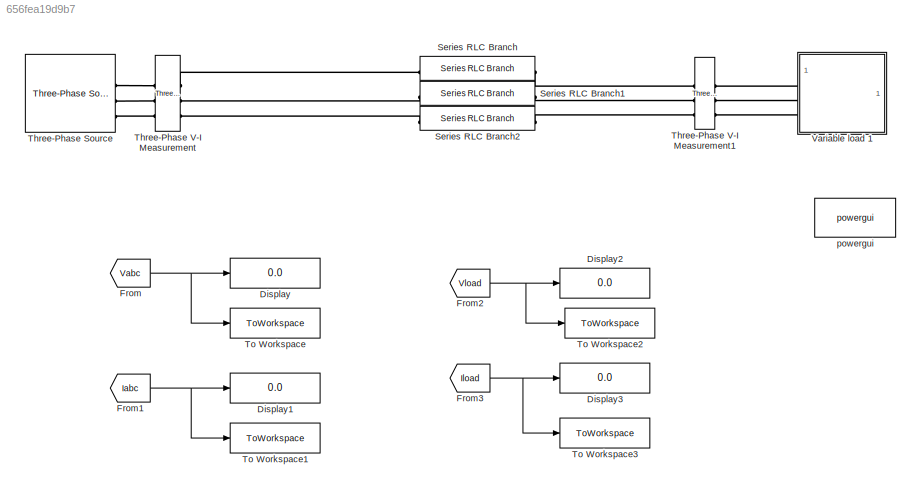
MODEL slx_656fea19d9b7
KIND model
CONFIG AbsTol = auto
CONFIG EnableMultiTasking = off
CONFIG FixedStep = auto
CONFIG MaxStep = auto
CONFIG MinStep = auto
CONFIG RelTol = 1e-3
CONFIG SampleTimeConstraint = Unconstrained
CONFIG SolverName = VariableStepAuto
CONFIG StartTime = 0.0
CONFIG StopTime = 0.4
BLOCK [Display] Display
  Decimation = 1
BLOCK [Display] Display1
  Decimation = 1
BLOCK [Display] Display2
  Decimation = 1
BLOCK [Display] Display3
  Decimation = 1
BLOCK [From] From
  GotoTag = Vabc
  TagVisibility = global
BLOCK [From] From1
  GotoTag = Iabc
  TagVisibility = global
BLOCK [From] From2
  GotoTag = Vload
  TagVisibility = global
BLOCK [From] From3
  GotoTag = Iload
  TagVisibility = global
BLOCK [Reference] Series RLC Branch  REF=spsSeriesRLCBranchLib/Series RLC Branch
  LibrarySourceBlock = sps_lib/Passives/Series RLC Branch
  SourceBlock = spsSeriesRLCBranchLib/Series RLC Branch
  SourceType = Series RLC Branch
BLOCK [Reference] Series RLC Branch1  REF=spsSeriesRLCBranchLib/Series RLC Branch
  LibrarySourceBlock = sps_lib/Passives/Series RLC Branch
  SourceBlock = spsSeriesRLCBranchLib/Series RLC Branch
  SourceType = Series RLC Branch
BLOCK [Reference] Series RLC Branch2  REF=spsSeriesRLCBranchLib/Series RLC Branch
  LibrarySourceBlock = sps_lib/Passives/Series RLC Branch
  SourceBlock = spsSeriesRLCBranchLib/Series RLC Branch
  SourceType = Series RLC Branch
BLOCK [Reference] Three-Phase Source  REF=spsThreePhaseSourceLib/Three-Phase Source
  LibrarySourceBlock = sps_lib/Sources/Three-Phase Source
  SourceBlock = spsThreePhaseSourceLib/Three-Phase Source
  SourceType = Three-Phase Source
BLOCK [Reference] Three-Phase V-I Measurement  REF=spsThreePhaseVIMeasurementLib/Three-Phase
V-I Measurement
  LibrarySourceBlock = sps_lib/Sensors and Measurements/Three-Phase\nV-I Measurement
  SourceBlock = spsThreePhaseVIMeasurementLib/Three-Phase\nV-I Measurement
  SourceType = Three-Phase VI Measurement
BLOCK [Reference] Three-Phase V-I Measurement1  REF=spsThreePhaseVIMeasurementLib/Three-Phase
V-I Measurement
  LibrarySourceBlock = sps_lib/Sensors and Measurements/Three-Phase\nV-I Measurement
  NameLocation = top
  SourceBlock = spsThreePhaseVIMeasurementLib/Three-Phase\nV-I Measurement
  SourceType = Three-Phase VI Measurement
BLOCK [ToWorkspace] To Workspace
  FixptAsFi = on
  MaxDataPoints = inf
  SampleTime = -1
  SaveFormat = Timeseries
  VariableName = Vabc
BLOCK [ToWorkspace] To Workspace1
  FixptAsFi = on
  MaxDataPoints = inf
  SampleTime = -1
  SaveFormat = Timeseries
  VariableName = Iabc
BLOCK [ToWorkspace] To Workspace2
  FixptAsFi = on
  MaxDataPoints = inf
  SampleTime = -1
  SaveFormat = Timeseries
  VariableName = Vload
BLOCK [ToWorkspace] To Workspace3
  FixptAsFi = on
  MaxDataPoints = inf
  SampleTime = -1
  SaveFormat = Timeseries
  VariableName = Iload
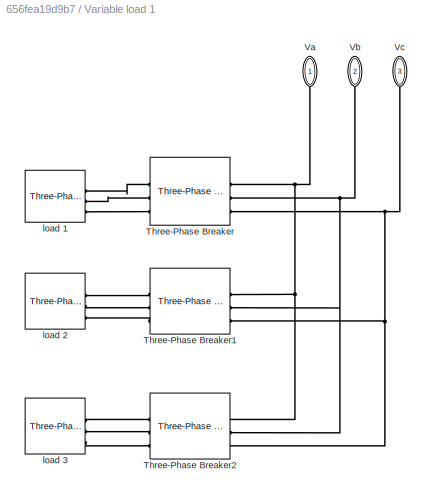
BLOCK [SubSystem] Variable load 1
  NameLocation = top
BLOCK [Reference] Variable load 1/Three-Phase Breaker  REF=spsThreePhaseBreakerLib/Three-Phase Breaker
  LibrarySourceBlock = sps_lib/Power Grid Elements/Three-Phase Breaker
  SourceBlock = spsThreePhaseBreakerLib/Three-Phase Breaker
  SourceType = Three-Phase Breaker
BLOCK [Reference] Variable load 1/Three-Phase Breaker1  REF=spsThreePhaseBreakerLib/Three-Phase Breaker
  LibrarySourceBlock = sps_lib/Power Grid Elements/Three-Phase Breaker
  SourceBlock = spsThreePhaseBreakerLib/Three-Phase Breaker
  SourceType = Three-Phase Breaker
BLOCK [Reference] Variable load 1/Three-Phase Breaker2  REF=spsThreePhaseBreakerLib/Three-Phase Breaker
  LibrarySourceBlock = sps_lib/Power Grid Elements/Three-Phase Breaker
  SourceBlock = spsThreePhaseBreakerLib/Three-Phase Breaker
  SourceType = Three-Phase Breaker
BLOCK [PMIOPort] Variable load 1/Va
  NameLocation = left
  Side = Left
BLOCK [PMIOPort] Variable load 1/Vb
  NameLocation = left
  Port = 2
  Side = Left
BLOCK [PMIOPort] Variable load 1/Vc
  NameLocation = left
  Port = 3
  Side = Left
BLOCK [Reference] Variable load 1/load 1  REF=spsThreePhaseSeriesRLCLoadLib/Three-Phase
Series RLC Load
  AttributesFormatString = \n
  LibrarySourceBlock = sps_lib/Passives/Three-Phase\nSeries RLC Load
  NameLocation = top
  SourceBlock = spsThreePhaseSeriesRLCLoadLib/Three-Phase\nSeries RLC Load
  SourceType = Three-Phase Series RLC Load
BLOCK [Reference] Variable load 1/load 2  REF=spsThreePhaseSeriesRLCLoadLib/Three-Phase
Series RLC Load
  AttributesFormatString = \n
  LibrarySourceBlock = sps_lib/Passives/Three-Phase\nSeries RLC Load
  NameLocation = top
  SourceBlock = spsThreePhaseSeriesRLCLoadLib/Three-Phase\nSeries RLC Load
  SourceType = Three-Phase Series RLC Load
BLOCK [Reference] Variable load 1/load 3  REF=spsThreePhaseSeriesRLCLoadLib/Three-Phase
Series RLC Load
  AttributesFormatString = \n
  LibrarySourceBlock = sps_lib/Passives/Three-Phase\nSeries RLC Load
  NameLocation = top
  SourceBlock = spsThreePhaseSeriesRLCLoadLib/Three-Phase\nSeries RLC Load
  SourceType = Three-Phase Series RLC Load
BLOCK [Reference] powergui  REF=sps_lib/powergui
  Priority = 1
  SourceBlock = sps_lib/powergui
  SourceType = PSB option menu block
NET From1:1 -> Display1:1, To Workspace1:1
NET From2:1 -> Display2:1, To Workspace2:1
NET From3:1 -> Display3:1, To Workspace3:1
NET From:1 -> Display:1, To Workspace:1
PLINE Series RLC Branch1:LConn1 -- Three-Phase V-I Measurement:RConn2
PLINE Series RLC Branch1:RConn1 -- Three-Phase V-I Measurement1:LConn2
PLINE Series RLC Branch2:LConn1 -- Three-Phase V-I Measurement:RConn3
PLINE Series RLC Branch2:RConn1 -- Three-Phase V-I Measurement1:LConn3
PLINE Series RLC Branch:LConn1 -- Three-Phase V-I Measurement:RConn1
PLINE Series RLC Branch:RConn1 -- Three-Phase V-I Measurement1:LConn1
PLINE Three-Phase Source:RConn1 -- Three-Phase V-I Measurement:LConn1
PLINE Three-Phase Source:RConn2 -- Three-Phase V-I Measurement:LConn2
PLINE Three-Phase Source:RConn3 -- Three-Phase V-I Measurement:LConn3
PLINE Three-Phase V-I Measurement1:RConn1 -- Variable load 1:LConn1
PLINE Three-Phase V-I Measurement1:RConn2 -- Variable load 1:LConn2
PLINE Three-Phase V-I Measurement1:RConn3 -- Variable load 1:LConn3
PLINE Variable load 1/Three-Phase Breaker1:LConn1 -- Variable load 1/load 2:LConn1
PLINE Variable load 1/Three-Phase Breaker1:LConn2 -- Variable load 1/load 2:LConn2
PLINE Variable load 1/Three-Phase Breaker1:LConn3 -- Variable load 1/load 2:LConn3
PNET net1: Variable load 1/Three-Phase Breaker1:RConn1 -- Variable load 1/Three-Phase Breaker2:RConn1 -- Variable load 1/Three-Phase Breaker:RConn1 -- Variable load 1/Va:RConn1
PNET net2: Variable load 1/Three-Phase Breaker1:RConn2 -- Variable load 1/Three-Phase Breaker2:RConn2 -- Variable load 1/Three-Phase Breaker:RConn2 -- Variable load 1/Vb:RConn1
PNET net3: Variable load 1/Three-Phase Breaker1:RConn3 -- Variable load 1/Three-Phase Breaker2:RConn3 -- Variable load 1/Three-Phase Breaker:RConn3 -- Variable load 1/Vc:RConn1
PLINE Variable load 1/Three-Phase Breaker2:LConn1 -- Variable load 1/load 3:LConn1
PLINE Variable load 1/Three-Phase Breaker2:LConn2 -- Variable load 1/load 3:LConn2
PLINE Variable load 1/Three-Phase Breaker2:LConn3 -- Variable load 1/load 3:LConn3
PLINE Variable load 1/Three-Phase Breaker:LConn1 -- Variable load 1/load 1:LConn1
PLINE Variable load 1/Three-Phase Breaker:LConn2 -- Variable load 1/load 1:LConn2
PLINE Variable load 1/Three-Phase Breaker:LConn3 -- Variable load 1/load 1:LConn3
note: NET lines group one-source signal fan-out (src -> all destinations, sorted); 1:1 wires keep LINE; PNET lines group multi-terminal physical nets as a canonical sorted terminal list (undirected conserving connections); 2-terminal nets keep the pairwise PLINE form
